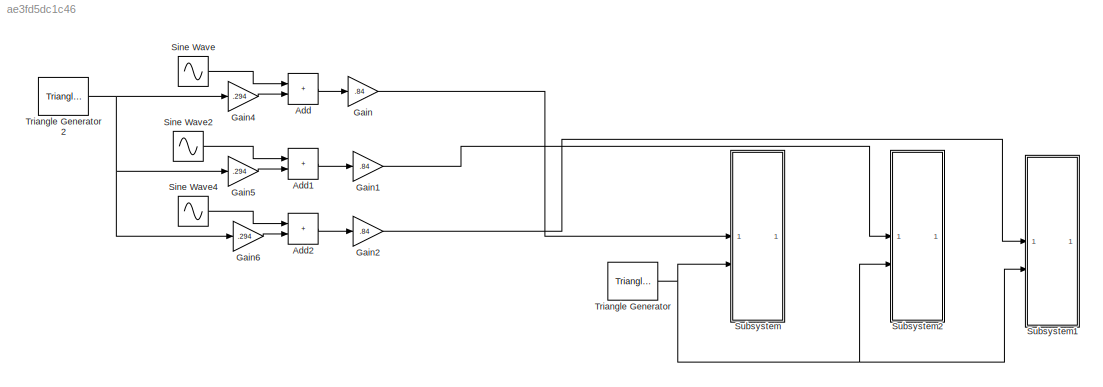
MODEL slx_ae3fd5dc1c46
KIND model
CONFIG AbsTol = auto
CONFIG EnableMultiTasking = off
CONFIG FixedStep = auto
CONFIG MaxStep = auto
CONFIG MinStep = auto
CONFIG RelTol = 1e-3
CONFIG SampleTimeConstraint = Unconstrained
CONFIG SolverName = FixedStepAuto
CONFIG StartTime = 0.0
CONFIG StopTime = 10.0
WORKSPACE source: mxarray member
WORKSPACE g = 0.25
BLOCK [Sum] Add
  IconShape = rectangular
BLOCK [Sum] Add1
  IconShape = rectangular
BLOCK [Sum] Add2
  IconShape = rectangular
BLOCK [Gain] Gain
  Gain = .84
BLOCK [Gain] Gain1
  Gain = .84
BLOCK [Gain] Gain2
  Gain = .84
BLOCK [Gain] Gain4
  Gain = .294
BLOCK [Gain] Gain5
  Gain = .294
BLOCK [Gain] Gain6
  Gain = .294
BLOCK [Sin] Sine Wave
  Amplitude = 1.92
  Frequency = 2*50*pi
  SampleTime = 0
BLOCK [Sin] Sine Wave2
  Amplitude = 1.92
  Frequency = 2*50*pi
  Phase = 2*pi/3
  SampleTime = 0
BLOCK [Sin] Sine Wave4
  Amplitude = 1.92
  Frequency = 2*50*pi
  Phase = -2*pi/3
  SampleTime = 0
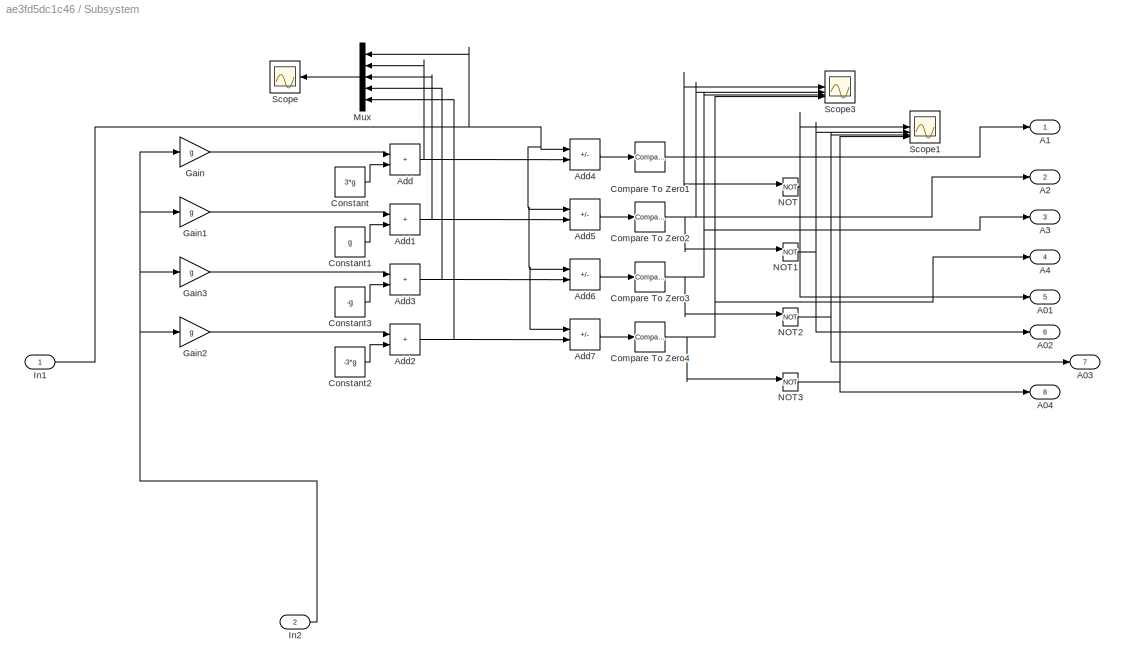
BLOCK [SubSystem] Subsystem
BLOCK [Outport] Subsystem/A01
  Port = 5
BLOCK [Outport] Subsystem/A02
  Port = 6
BLOCK [Outport] Subsystem/A03
  Port = 7
BLOCK [Outport] Subsystem/A04
  Port = 8
BLOCK [Outport] Subsystem/A1
BLOCK [Outport] Subsystem/A2
  Port = 2
BLOCK [Outport] Subsystem/A3
  Port = 3
BLOCK [Outport] Subsystem/A4
  Port = 4
BLOCK [Sum] Subsystem/Add
  IconShape = rectangular
BLOCK [Sum] Subsystem/Add1
  IconShape = rectangular
BLOCK [Sum] Subsystem/Add2
  IconShape = rectangular
BLOCK [Sum] Subsystem/Add3
  IconShape = rectangular
BLOCK [Sum] Subsystem/Add4
  IconShape = rectangular
  Inputs = +-
BLOCK [Sum] Subsystem/Add5
  IconShape = rectangular
  Inputs = +-
BLOCK [Sum] Subsystem/Add6
  IconShape = rectangular
  Inputs = +-
BLOCK [Sum] Subsystem/Add7
  IconShape = rectangular
  Inputs = +-
BLOCK [Reference] Subsystem/Compare To Zero1  REF=simulink/Logic and Bit
Operations/Compare
To Zero
  SourceBlock = simulink/Logic and Bit\nOperations/Compare\nTo Zero
  SourceType = Compare To Zero
BLOCK [Reference] Subsystem/Compare To Zero2  REF=simulink/Logic and Bit
Operations/Compare
To Zero
  SourceBlock = simulink/Logic and Bit\nOperations/Compare\nTo Zero
  SourceType = Compare To Zero
BLOCK [Reference] Subsystem/Compare To Zero3  REF=simulink/Logic and Bit
Operations/Compare
To Zero
  SourceBlock = simulink/Logic and Bit\nOperations/Compare\nTo Zero
  SourceType = Compare To Zero
BLOCK [Reference] Subsystem/Compare To Zero4  REF=simulink/Logic and Bit
Operations/Compare
To Zero
  SourceBlock = simulink/Logic and Bit\nOperations/Compare\nTo Zero
  SourceType = Compare To Zero
BLOCK [Constant] Subsystem/Constant
  Value = 3*g
BLOCK [Constant] Subsystem/Constant1
  Value = g
BLOCK [Constant] Subsystem/Constant2
  Value = -3*g
BLOCK [Constant] Subsystem/Constant3
  Value = -g
BLOCK [Gain] Subsystem/Gain
  Gain = g
BLOCK [Gain] Subsystem/Gain1
  Gain = g
BLOCK [Gain] Subsystem/Gain2
  Gain = g
BLOCK [Gain] Subsystem/Gain3
  Gain = g
BLOCK [Inport] Subsystem/In1
BLOCK [Inport] Subsystem/In2
  Port = 2
BLOCK [Mux] Subsystem/Mux
  DisplayOption = bar
  Inputs = 5
  NameLocation = top
BLOCK [Logic] Subsystem/NOT
  AllPortsSameDT = off
  IconShape = distinctive
  Operator = NOT
  OutDataTypeStr = boolean
BLOCK [Logic] Subsystem/NOT1
  AllPortsSameDT = off
  IconShape = distinctive
  Operator = NOT
  OutDataTypeStr = boolean
BLOCK [Logic] Subsystem/NOT2
  AllPortsSameDT = off
  IconShape = distinctive
  Operator = NOT
  OutDataTypeStr = boolean
BLOCK [Logic] Subsystem/NOT3
  AllPortsSameDT = off
  IconShape = distinctive
  Operator = NOT
  OutDataTypeStr = boolean
BLOCK [Scope] Subsystem/Scope
  Floating = off
  NameLocation = top
  NumInputPorts = 1
  ScopeSpecificationString = Simulink.scopes.TimeScopeBlockCfg('CurrentConfiguration', extmgr.ConfigurationSet(extmgr.Configuration('Core','General UI',true),extmgr.Configuration('Core','Source UI',true),extmgr.Configuration('Sources','WiredSimulink',true,'DataLoggingVariableName','ScopeData1'),extmgr.Configuration('Visuals','Time Domain',true,'SerializedDisplays',{struct('MinYLimReal','-1.75','MaxYLimReal','1.75','YLabelReal...<+1452ch>
BLOCK [Scope] Subsystem/Scope1
  Floating = off
  NumInputPorts = 4
  ScopeSpecificationString = Simulink.scopes.TimeScopeBlockCfg('CurrentConfiguration', extmgr.ConfigurationSet(extmgr.Configuration('Core','General UI',true),extmgr.Configuration('Core','Source UI',true),extmgr.Configuration('Sources','WiredSimulink',true,'DataLoggingVariableName','ScopeData2'),extmgr.Configuration('Visuals','Time Domain',true,'SerializedDisplays',{struct('MinYLimReal','-0.125','MaxYLimReal','1.125','YLabelRe...<+3416ch>
BLOCK [Scope] Subsystem/Scope3
  Floating = off
  NumInputPorts = 4
  ScopeSpecificationString = Simulink.scopes.TimeScopeBlockCfg('CurrentConfiguration', extmgr.ConfigurationSet(extmgr.Configuration('Core','General UI',true),extmgr.Configuration('Core','Source UI',true),extmgr.Configuration('Sources','WiredSimulink',true,'DataLoggingVariableName','ScopeData1'),extmgr.Configuration('Visuals','Time Domain',true,'SerializedDisplays',{struct('MinYLimReal','-0.125','MaxYLimReal','1.125','YLabelRe...<+3466ch>
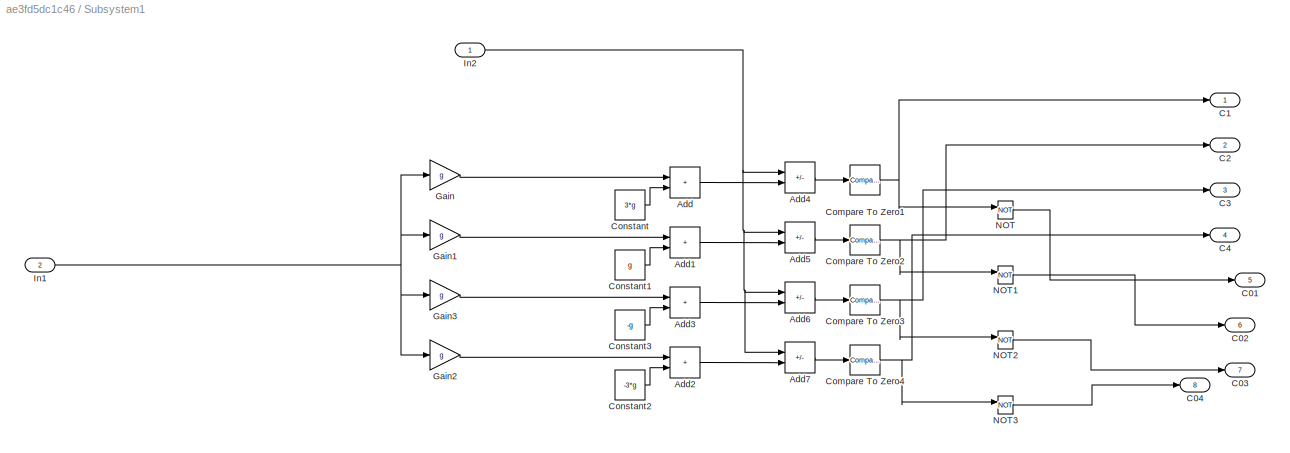
BLOCK [SubSystem] Subsystem1
BLOCK [Sum] Subsystem1/Add
  IconShape = rectangular
BLOCK [Sum] Subsystem1/Add1
  IconShape = rectangular
BLOCK [Sum] Subsystem1/Add2
  IconShape = rectangular
BLOCK [Sum] Subsystem1/Add3
  IconShape = rectangular
BLOCK [Sum] Subsystem1/Add4
  IconShape = rectangular
  Inputs = +-
BLOCK [Sum] Subsystem1/Add5
  IconShape = rectangular
  Inputs = +-
BLOCK [Sum] Subsystem1/Add6
  IconShape = rectangular
  Inputs = +-
BLOCK [Sum] Subsystem1/Add7
  IconShape = rectangular
  Inputs = +-
BLOCK [Outport] Subsystem1/C01
  Port = 5
BLOCK [Outport] Subsystem1/C02
  Port = 6
BLOCK [Outport] Subsystem1/C03
  Port = 7
BLOCK [Outport] Subsystem1/C04
  Port = 8
BLOCK [Outport] Subsystem1/C1
BLOCK [Outport] Subsystem1/C2
  Port = 2
BLOCK [Outport] Subsystem1/C3
  Port = 3
BLOCK [Outport] Subsystem1/C4
  Port = 4
BLOCK [Reference] Subsystem1/Compare To Zero1  REF=simulink/Logic and Bit
Operations/Compare
To Zero
  SourceBlock = simulink/Logic and Bit\nOperations/Compare\nTo Zero
  SourceType = Compare To Zero
BLOCK [Reference] Subsystem1/Compare To Zero2  REF=simulink/Logic and Bit
Operations/Compare
To Zero
  SourceBlock = simulink/Logic and Bit\nOperations/Compare\nTo Zero
  SourceType = Compare To Zero
BLOCK [Reference] Subsystem1/Compare To Zero3  REF=simulink/Logic and Bit
Operations/Compare
To Zero
  SourceBlock = simulink/Logic and Bit\nOperations/Compare\nTo Zero
  SourceType = Compare To Zero
BLOCK [Reference] Subsystem1/Compare To Zero4  REF=simulink/Logic and Bit
Operations/Compare
To Zero
  SourceBlock = simulink/Logic and Bit\nOperations/Compare\nTo Zero
  SourceType = Compare To Zero
BLOCK [Constant] Subsystem1/Constant
  Value = 3*g
BLOCK [Constant] Subsystem1/Constant1
  Value = g
BLOCK [Constant] Subsystem1/Constant2
  Value = -3*g
BLOCK [Constant] Subsystem1/Constant3
  Value = -g
BLOCK [Gain] Subsystem1/Gain
  Gain = g
BLOCK [Gain] Subsystem1/Gain1
  Gain = g
BLOCK [Gain] Subsystem1/Gain2
  Gain = g
BLOCK [Gain] Subsystem1/Gain3
  Gain = g
BLOCK [Inport] Subsystem1/In1
  Port = 2
BLOCK [Inport] Subsystem1/In2
BLOCK [Logic] Subsystem1/NOT
  AllPortsSameDT = off
  IconShape = distinctive
  Operator = NOT
  OutDataTypeStr = boolean
BLOCK [Logic] Subsystem1/NOT1
  AllPortsSameDT = off
  IconShape = distinctive
  Operator = NOT
  OutDataTypeStr = boolean
BLOCK [Logic] Subsystem1/NOT2
  AllPortsSameDT = off
  IconShape = distinctive
  Operator = NOT
  OutDataTypeStr = boolean
BLOCK [Logic] Subsystem1/NOT3
  AllPortsSameDT = off
  IconShape = distinctive
  Operator = NOT
  OutDataTypeStr = boolean
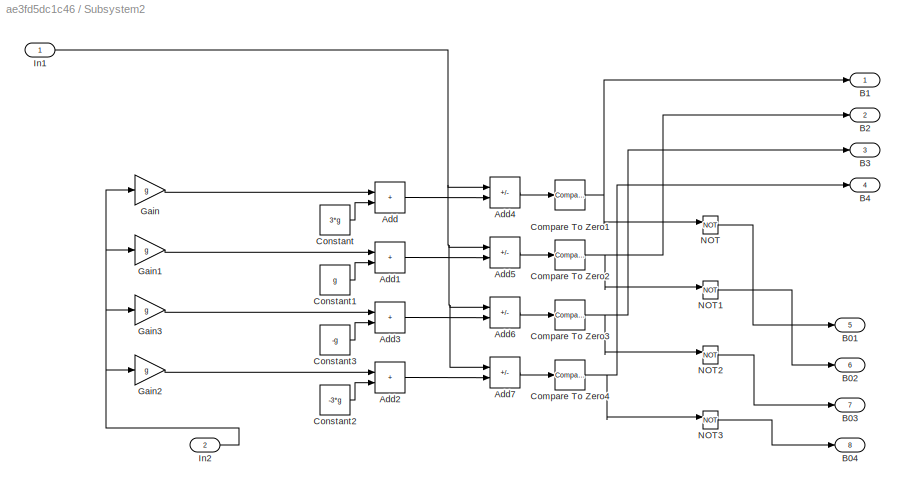
BLOCK [SubSystem] Subsystem2
BLOCK [Sum] Subsystem2/Add
  IconShape = rectangular
BLOCK [Sum] Subsystem2/Add1
  IconShape = rectangular
BLOCK [Sum] Subsystem2/Add2
  IconShape = rectangular
BLOCK [Sum] Subsystem2/Add3
  IconShape = rectangular
BLOCK [Sum] Subsystem2/Add4
  IconShape = rectangular
  Inputs = +-
BLOCK [Sum] Subsystem2/Add5
  IconShape = rectangular
  Inputs = +-
BLOCK [Sum] Subsystem2/Add6
  IconShape = rectangular
  Inputs = +-
BLOCK [Sum] Subsystem2/Add7
  IconShape = rectangular
  Inputs = +-
BLOCK [Outport] Subsystem2/B01
  Port = 5
BLOCK [Outport] Subsystem2/B02
  Port = 6
BLOCK [Outport] Subsystem2/B03
  Port = 7
BLOCK [Outport] Subsystem2/B04
  Port = 8
BLOCK [Outport] Subsystem2/B1
BLOCK [Outport] Subsystem2/B2
  Port = 2
BLOCK [Outport] Subsystem2/B3
  Port = 3
BLOCK [Outport] Subsystem2/B4
  Port = 4
BLOCK [Reference] Subsystem2/Compare To Zero1  REF=simulink/Logic and Bit
Operations/Compare
To Zero
  SourceBlock = simulink/Logic and Bit\nOperations/Compare\nTo Zero
  SourceType = Compare To Zero
BLOCK [Reference] Subsystem2/Compare To Zero2  REF=simulink/Logic and Bit
Operations/Compare
To Zero
  SourceBlock = simulink/Logic and Bit\nOperations/Compare\nTo Zero
  SourceType = Compare To Zero
BLOCK [Reference] Subsystem2/Compare To Zero3  REF=simulink/Logic and Bit
Operations/Compare
To Zero
  SourceBlock = simulink/Logic and Bit\nOperations/Compare\nTo Zero
  SourceType = Compare To Zero
BLOCK [Reference] Subsystem2/Compare To Zero4  REF=simulink/Logic and Bit
Operations/Compare
To Zero
  SourceBlock = simulink/Logic and Bit\nOperations/Compare\nTo Zero
  SourceType = Compare To Zero
BLOCK [Constant] Subsystem2/Constant
  Value = 3*g
BLOCK [Constant] Subsystem2/Constant1
  Value = g
BLOCK [Constant] Subsystem2/Constant2
  Value = -3*g
BLOCK [Constant] Subsystem2/Constant3
  Value = -g
BLOCK [Gain] Subsystem2/Gain
  Gain = g
BLOCK [Gain] Subsystem2/Gain1
  Gain = g
BLOCK [Gain] Subsystem2/Gain2
  Gain = g
BLOCK [Gain] Subsystem2/Gain3
  Gain = g
BLOCK [Inport] Subsystem2/In1
BLOCK [Inport] Subsystem2/In2
  Port = 2
BLOCK [Logic] Subsystem2/NOT
  AllPortsSameDT = off
  IconShape = distinctive
  Operator = NOT
  OutDataTypeStr = boolean
BLOCK [Logic] Subsystem2/NOT1
  AllPortsSameDT = off
  IconShape = distinctive
  Operator = NOT
  OutDataTypeStr = boolean
BLOCK [Logic] Subsystem2/NOT2
  AllPortsSameDT = off
  IconShape = distinctive
  Operator = NOT
  OutDataTypeStr = boolean
BLOCK [Logic] Subsystem2/NOT3
  AllPortsSameDT = off
  IconShape = distinctive
  Operator = NOT
  OutDataTypeStr = boolean
BLOCK [Reference] Triangle Generator  REF=spsTriangleGeneratorLib/Triangle
Generator
  LibrarySourceBlock = sps_lib/Sources/Signal Generator Sources/Triangle\nGenerator
  SourceBlock = spsTriangleGeneratorLib/Triangle\nGenerator
  SourceType = Triangle Generator
BLOCK [Reference] Triangle Generator2  REF=spsTriangleGeneratorLib/Triangle
Generator
  LibrarySourceBlock = sps_lib/Sources/Signal Generator Sources/Triangle\nGenerator
  SourceBlock = spsTriangleGeneratorLib/Triangle\nGenerator
  SourceType = Triangle Generator
LINE Add1:1 -> Gain1:1
LINE Add2:1 -> Gain2:1
LINE Add:1 -> Gain:1
LINE Gain1:1 -> Subsystem2:1
LINE Gain2:1 -> Subsystem1:1
LINE Gain4:1 -> Add:2
LINE Gain5:1 -> Add1:2
LINE Gain6:1 -> Add2:2
LINE Gain:1 -> Subsystem:1
LINE Sine Wave2:1 -> Add1:1
LINE Sine Wave4:1 -> Add2:1
LINE Sine Wave:1 -> Add:1
NET Subsystem/Add1:1 -> Subsystem/Add5:2, Subsystem/Mux:3
NET Subsystem/Add2:1 -> Subsystem/Add7:2, Subsystem/Mux:5
NET Subsystem/Add3:1 -> Subsystem/Add6:2, Subsystem/Mux:4
LINE Subsystem/Add4:1 -> Subsystem/Compare To Zero1:1
LINE Subsystem/Add5:1 -> Subsystem/Compare To Zero2:1
LINE Subsystem/Add6:1 -> Subsystem/Compare To Zero3:1
LINE Subsystem/Add7:1 -> Subsystem/Compare To Zero4:1
NET Subsystem/Add:1 -> Subsystem/Add4:2, Subsystem/Mux:2
NET Subsystem/Compare To Zero1:1 -> Subsystem/A1:1, Subsystem/NOT:1, Subsystem/Scope3:1
NET Subsystem/Compare To Zero2:1 -> Subsystem/A2:1, Subsystem/NOT1:1, Subsystem/Scope3:2
NET Subsystem/Compare To Zero3:1 -> Subsystem/A3:1, Subsystem/NOT2:1, Subsystem/Scope3:3
NET Subsystem/Compare To Zero4:1 -> Subsystem/A4:1, Subsystem/NOT3:1, Subsystem/Scope3:4
LINE Subsystem/Constant1:1 -> Subsystem/Add1:2
LINE Subsystem/Constant2:1 -> Subsystem/Add2:2
LINE Subsystem/Constant3:1 -> Subsystem/Add3:2
LINE Subsystem/Constant:1 -> Subsystem/Add:2
LINE Subsystem/Gain1:1 -> Subsystem/Add1:1
LINE Subsystem/Gain2:1 -> Subsystem/Add2:1
LINE Subsystem/Gain3:1 -> Subsystem/Add3:1
LINE Subsystem/Gain:1 -> Subsystem/Add:1
NET Subsystem/In1:1 -> Subsystem/Add4:1, Subsystem/Add5:1, Subsystem/Add6:1, Subsystem/Add7:1, Subsystem/Mux:1
NET Subsystem/In2:1 -> Subsystem/Gain1:1, Subsystem/Gain2:1, Subsystem/Gain3:1, Subsystem/Gain:1
LINE Subsystem/Mux:1 -> Subsystem/Scope:1
NET Subsystem/NOT1:1 -> Subsystem/A02:1, Subsystem/Scope1:2
NET Subsystem/NOT2:1 -> Subsystem/A03:1, Subsystem/Scope1:3
NET Subsystem/NOT3:1 -> Subsystem/A04:1, Subsystem/Scope1:4
NET Subsystem/NOT:1 -> Subsystem/A01:1, Subsystem/Scope1:1
LINE Subsystem1/Add1:1 -> Subsystem1/Add5:2
LINE Subsystem1/Add2:1 -> Subsystem1/Add7:2
LINE Subsystem1/Add3:1 -> Subsystem1/Add6:2
LINE Subsystem1/Add4:1 -> Subsystem1/Compare To Zero1:1
LINE Subsystem1/Add5:1 -> Subsystem1/Compare To Zero2:1
LINE Subsystem1/Add6:1 -> Subsystem1/Compare To Zero3:1
LINE Subsystem1/Add7:1 -> Subsystem1/Compare To Zero4:1
LINE Subsystem1/Add:1 -> Subsystem1/Add4:2
NET Subsystem1/Compare To Zero1:1 -> Subsystem1/C1:1, Subsystem1/NOT:1
NET Subsystem1/Compare To Zero2:1 -> Subsystem1/C2:1, Subsystem1/NOT1:1
NET Subsystem1/Compare To Zero3:1 -> Subsystem1/C3:1, Subsystem1/NOT2:1
NET Subsystem1/Compare To Zero4:1 -> Subsystem1/C4:1, Subsystem1/NOT3:1
LINE Subsystem1/Constant1:1 -> Subsystem1/Add1:2
LINE Subsystem1/Constant2:1 -> Subsystem1/Add2:2
LINE Subsystem1/Constant3:1 -> Subsystem1/Add3:2
LINE Subsystem1/Constant:1 -> Subsystem1/Add:2
LINE Subsystem1/Gain1:1 -> Subsystem1/Add1:1
LINE Subsystem1/Gain2:1 -> Subsystem1/Add2:1
LINE Subsystem1/Gain3:1 -> Subsystem1/Add3:1
LINE Subsystem1/Gain:1 -> Subsystem1/Add:1
NET Subsystem1/In1:1 -> Subsystem1/Gain1:1, Subsystem1/Gain2:1, Subsystem1/Gain3:1, Subsystem1/Gain:1
NET Subsystem1/In2:1 -> Subsystem1/Add4:1, Subsystem1/Add5:1, Subsystem1/Add6:1, Subsystem1/Add7:1
LINE Subsystem1/NOT1:1 -> Subsystem1/C02:1
LINE Subsystem1/NOT2:1 -> Subsystem1/C03:1
LINE Subsystem1/NOT3:1 -> Subsystem1/C04:1
LINE Subsystem1/NOT:1 -> Subsystem1/C01:1
LINE Subsystem2/Add1:1 -> Subsystem2/Add5:2
LINE Subsystem2/Add2:1 -> Subsystem2/Add7:2
LINE Subsystem2/Add3:1 -> Subsystem2/Add6:2
LINE Subsystem2/Add4:1 -> Subsystem2/Compare To Zero1:1
LINE Subsystem2/Add5:1 -> Subsystem2/Compare To Zero2:1
LINE Subsystem2/Add6:1 -> Subsystem2/Compare To Zero3:1
LINE Subsystem2/Add7:1 -> Subsystem2/Compare To Zero4:1
LINE Subsystem2/Add:1 -> Subsystem2/Add4:2
NET Subsystem2/Compare To Zero1:1 -> Subsystem2/B1:1, Subsystem2/NOT:1
NET Subsystem2/Compare To Zero2:1 -> Subsystem2/B2:1, Subsystem2/NOT1:1
NET Subsystem2/Compare To Zero3:1 -> Subsystem2/B3:1, Subsystem2/NOT2:1
NET Subsystem2/Compare To Zero4:1 -> Subsystem2/B4:1, Subsystem2/NOT3:1
LINE Subsystem2/Constant1:1 -> Subsystem2/Add1:2
LINE Subsystem2/Constant2:1 -> Subsystem2/Add2:2
LINE Subsystem2/Constant3:1 -> Subsystem2/Add3:2
LINE Subsystem2/Constant:1 -> Subsystem2/Add:2
LINE Subsystem2/Gain1:1 -> Subsystem2/Add1:1
LINE Subsystem2/Gain2:1 -> Subsystem2/Add2:1
LINE Subsystem2/Gain3:1 -> Subsystem2/Add3:1
LINE Subsystem2/Gain:1 -> Subsystem2/Add:1
NET Subsystem2/In1:1 -> Subsystem2/Add4:1, Subsystem2/Add5:1, Subsystem2/Add6:1, Subsystem2/Add7:1
NET Subsystem2/In2:1 -> Subsystem2/Gain1:1, Subsystem2/Gain2:1, Subsystem2/Gain3:1, Subsystem2/Gain:1
LINE Subsystem2/NOT1:1 -> Subsystem2/B02:1
LINE Subsystem2/NOT2:1 -> Subsystem2/B03:1
LINE Subsystem2/NOT3:1 -> Subsystem2/B04:1
LINE Subsystem2/NOT:1 -> Subsystem2/B01:1
NET Triangle Generator2:1 -> Gain4:1, Gain5:1, Gain6:1
NET Triangle Generator:1 -> Subsystem1:2, Subsystem2:2, Subsystem:2
note: NET lines group one-source signal fan-out (src -> all destinations, sorted); 1:1 wires keep LINE
